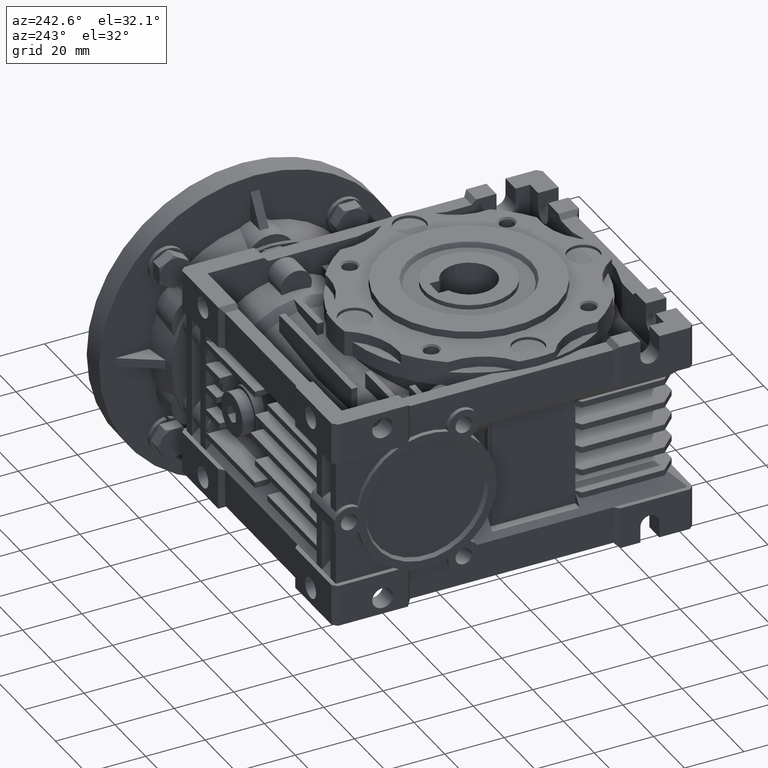
[diagram: clean part render]
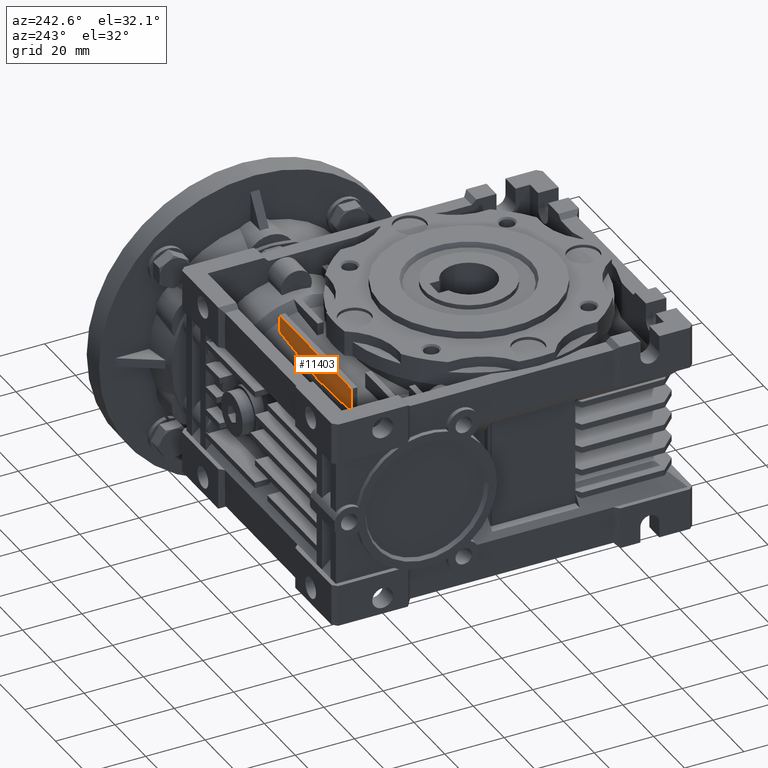
[diagram: same view with one face highlighted and labeled with its STEP entity id]
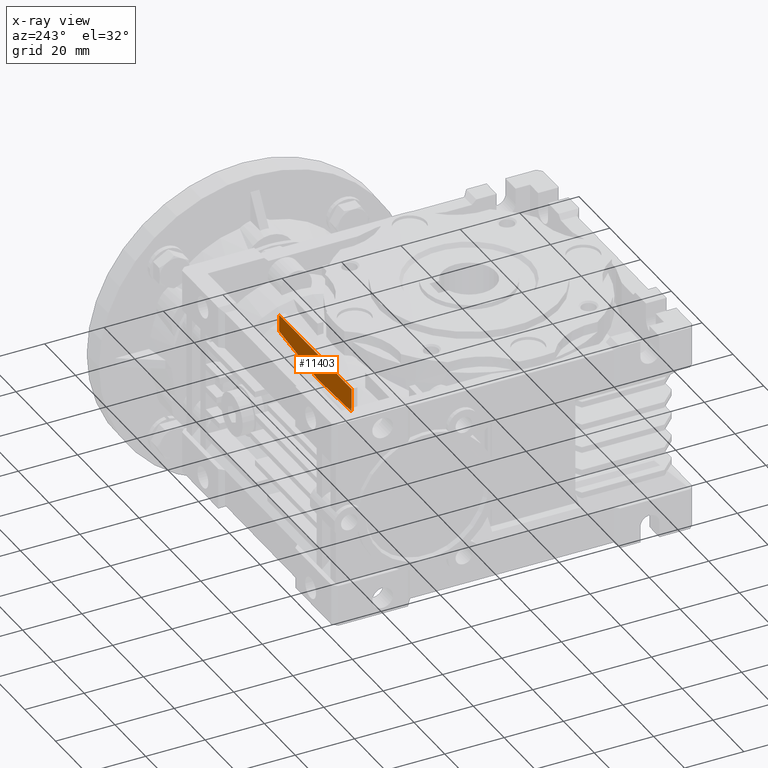
[diagram: x-ray of the same camera — body ghosted, the highlighted face saturated]
A machine part, auxiliary view. The second image highlights one B-rep face of the part: STEP entity #11403.
The next image is the same camera in x-ray: the body ghosted, the highlighted face saturated — about 0% of this face is hidden behind the body in this view.
In plain terms, the highlighted planar face has unit normal (0, -1, 0).
Its self-contained STEP definition (entity closure, byte-faithful):
#1143 = ORIENTED_EDGE ( 'NONE', *, *, #19921, .F. ) ;
#1487 = VERTEX_POINT ( 'NONE', #25828 ) ;
#1725 = DIRECTION ( 'NONE',  ( -1.000000000000000000, 0.000000000000000000, 0.000000000000000000 ) ) ;
#1872 = VERTEX_POINT ( 'NONE', #30298 ) ;
#1955 = LINE ( 'NONE', #24874, #24699 ) ;
#2026 = LINE ( 'NONE', #11493, #20199 ) ;
#2159 = CARTESIAN_POINT ( 'NONE',  ( 8.330968507281935942, 51.00000000000000000, 19.20614942087772192 ) ) ;
#2533 = B_SPLINE_CURVE_WITH_KNOTS ( 'NONE', 3,
 ( #23060, #2159, #6652, #16078 ),
 .UNSPECIFIED., .F., .F.,
 ( 4, 4 ),
 ( 0.000000000000000000, 0.02518120783231317730 ),
 .UNSPECIFIED. ) ;
#3380 = ORIENTED_EDGE ( 'NONE', *, *, #28408, .F. ) ;
#3390 = ORIENTED_EDGE ( 'NONE', *, *, #21385, .F. ) ;
#3481 = CARTESIAN_POINT ( 'NONE',  ( -2.087151961174697316E-14, 51.00000001598982635, 18.18137782590263285 ) ) ;
#5963 = DIRECTION ( 'NONE',  ( 0.000000000000000000, -1.000000000000000000, 0.000000000000000000 ) ) ;
#6032 = CARTESIAN_POINT ( 'NONE',  ( -22.00000000000000000, 51.00000000000000000, -27.00000000000000000 ) ) ;
#6652 = CARTESIAN_POINT ( 'NONE',  ( 16.66463719424877254, 51.00000000000000000, 20.20853515375471687 ) ) ;
#7883 = CARTESIAN_POINT ( 'NONE',  ( -2.087151961174697316E-14, 51.00000001598982635, 18.18137782590263285 ) ) ;
#8607 = PLANE ( 'NONE',  #19562 ) ;
#8669 = DIRECTION ( 'NONE',  ( 0.000000000000000000, 0.000000000000000000, -1.000000000000000000 ) ) ;
#9538 = CARTESIAN_POINT ( 'NONE',  ( -22.00000000000000000, 51.00000000000000000, 27.00000000000000000 ) ) ;
#10455 = CARTESIAN_POINT ( 'NONE',  ( -22.00000000000000000, 51.00000000000000000, 19.07610415617309840 ) ) ;
#11191 = EDGE_CURVE ( 'NONE', #18830, #23225, #29869, .T. ) ;
#11403 = ADVANCED_FACE ( 'NONE', ( #22063 ), #8607, .F. ) ;
#11422 = DIRECTION ( 'NONE',  ( 0.000000000000000000, 0.000000000000000000, 1.000000000000000000 ) ) ;
#11493 = CARTESIAN_POINT ( 'NONE',  ( -22.00000000000000000, 51.00000000000000000, 27.00000000000000000 ) ) ;
#13116 = B_SPLINE_CURVE_WITH_KNOTS ( 'NONE', 3,
 ( #10455, #17377, #14621, #3481 ),
 .UNSPECIFIED., .F., .F.,
 ( 4, 4 ),
 ( 0.000000000000000000, 1.000000000000000000 ),
 .UNSPECIFIED. ) ;
#14621 = CARTESIAN_POINT ( 'NONE',  ( -7.170185461290619955, 51.00000079248589913, 18.47483992497160088 ) ) ;
#15408 = CARTESIAN_POINT ( 'NONE',  ( -22.00000000000000000, 51.00000000000000000, -27.00000000000000000 ) ) ;
#16078 = CARTESIAN_POINT ( 'NONE',  ( 25.00000000000000000, 51.00000000000000000, 21.19687578685261897 ) ) ;
#17377 = CARTESIAN_POINT ( 'NONE',  ( -14.50351879462395921, 51.00000077760169859, 18.77307551246624939 ) ) ;
#18830 = VERTEX_POINT ( 'NONE', #9538 ) ;
#19331 = ORIENTED_EDGE ( 'NONE', *, *, #11191, .F. ) ;
#19562 = AXIS2_PLACEMENT_3D ( 'NONE', #15408, #5963, #25003 ) ;
#19921 = EDGE_CURVE ( 'NONE', #29999, #1487, #2533, .T. ) ;
#20199 = VECTOR ( 'NONE', #1725, 1000.000000000000000 ) ;
#20833 = CARTESIAN_POINT ( 'NONE',  ( -22.00000000000000000, 51.00000000000000000, 19.07610415617309840 ) ) ;
#21385 = EDGE_CURVE ( 'NONE', #23225, #29999, #13116, .T. ) ;
#22063 = FACE_OUTER_BOUND ( 'NONE', #25011, .T. ) ;
#23060 = CARTESIAN_POINT ( 'NONE',  ( -2.087151961174697316E-14, 51.00000001598982635, 18.18137782590263285 ) ) ;
#23225 = VERTEX_POINT ( 'NONE', #20833 ) ;
#24423 = ORIENTED_EDGE ( 'NONE', *, *, #28651, .F. ) ;
#24699 = VECTOR ( 'NONE', #11422, 1000.000000000000000 ) ;
#24874 = CARTESIAN_POINT ( 'NONE',  ( 25.00000000000000000, 51.00000000000000000, -27.00000000000000000 ) ) ;
#25003 = DIRECTION ( 'NONE',  ( 0.000000000000000000, 0.000000000000000000, -1.000000000000000000 ) ) ;
#25011 = EDGE_LOOP ( 'NONE', ( #1143, #3390, #19331, #3380, #24423 ) ) ;
#25828 = CARTESIAN_POINT ( 'NONE',  ( 25.00000000000000000, 51.00000000000000000, 21.19687578685261897 ) ) ;
#28408 = EDGE_CURVE ( 'NONE', #1872, #18830, #2026, .T. ) ;
#28441 = VECTOR ( 'NONE', #8669, 1000.000000000000000 ) ;
#28651 = EDGE_CURVE ( 'NONE', #1487, #1872, #1955, .T. ) ;
#29869 = LINE ( 'NONE', #6032, #28441 ) ;
#29999 = VERTEX_POINT ( 'NONE', #7883 ) ;
#30298 = CARTESIAN_POINT ( 'NONE',  ( 25.00000000000000000, 51.00000000000000000, 27.00000000000000000 ) ) ;